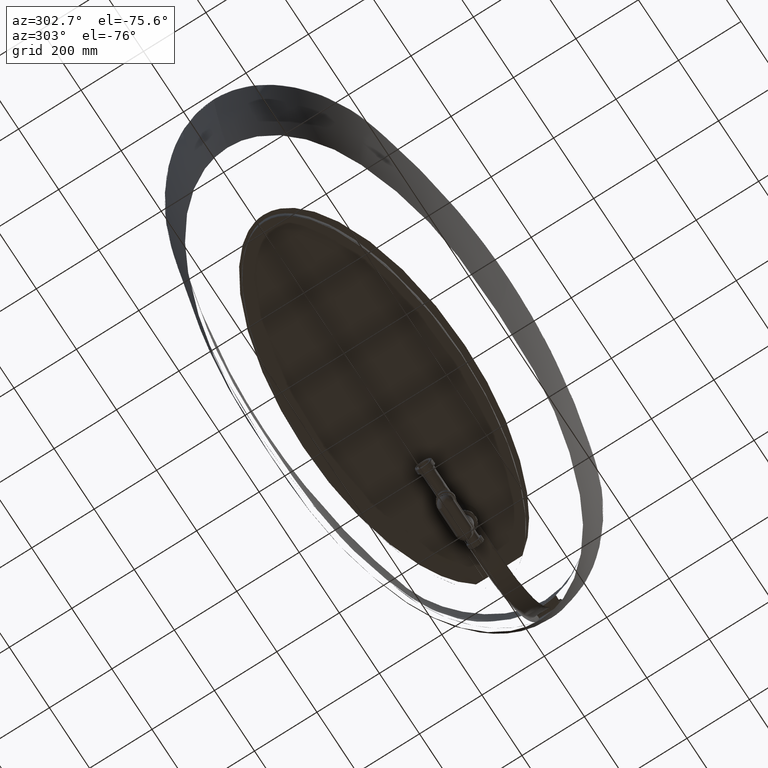
[diagram: clean part render]
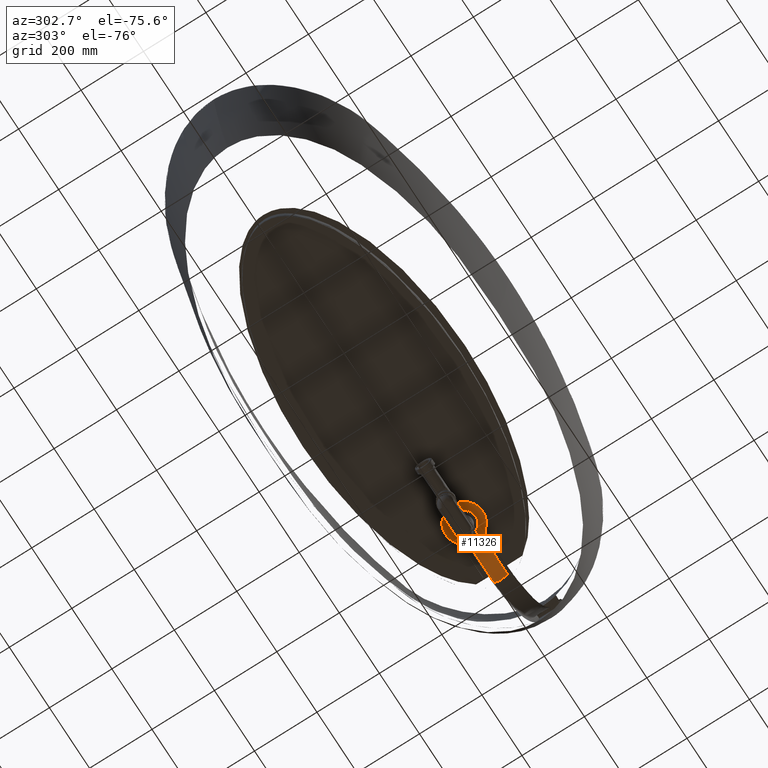
[diagram: same view with one face highlighted and labeled with its STEP entity id]
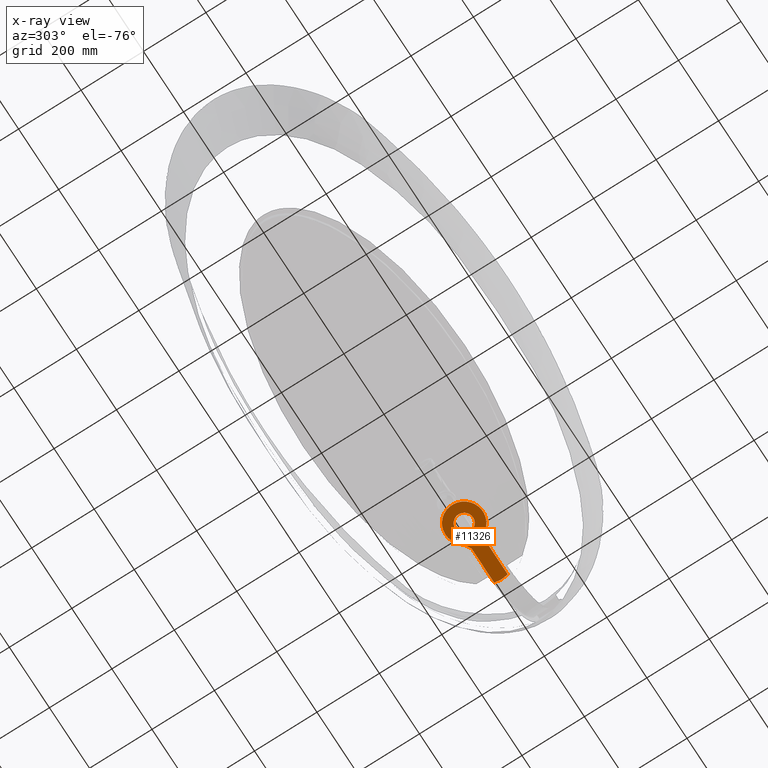
[diagram: x-ray of the same camera — body ghosted, the highlighted face saturated]
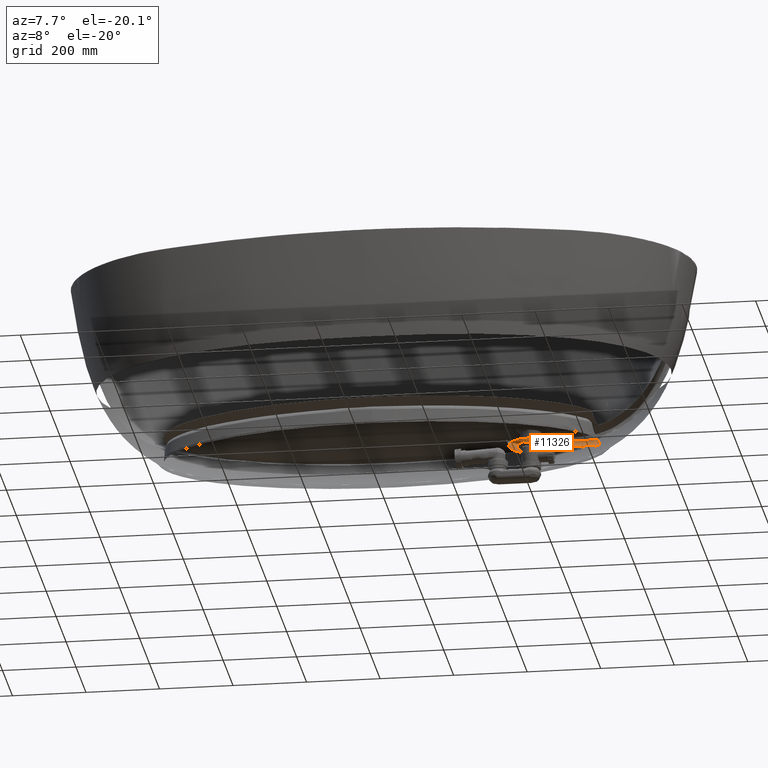
[diagram: same view with one face highlighted and labeled with its STEP entity id]
A machine part, auxiliary view. The second image highlights one B-rep face of the part: STEP entity #11326.
The next image is the same camera in x-ray: the body ghosted, the highlighted face saturated — about 0% of this face is hidden behind the body in this view.
A second angle (auxiliary view) of the same face is appended — the face is thin or edge-on in the first view.
In plain terms, the highlighted planar face has unit normal (0, 0, 1).
Its self-contained STEP definition (entity closure, byte-faithful):
#6829=(
BOUNDED_CURVE()
B_SPLINE_CURVE(2,(#441106,#441107,#441108,#441109,#441110,#441111,#441112,
#441113,#441114),.UNSPECIFIED.,.F.,.F.)
B_SPLINE_CURVE_WITH_KNOTS((3,2,2,2,3),(-9.86416203930085,-8.64812152947564,
-7.43208101965043,-6.21604050982521,-5.),.UNSPECIFIED.)
CURVE()
GEOMETRIC_REPRESENTATION_ITEM()
RATIONAL_B_SPLINE_CURVE((1.,0.820780542384642,1.,0.820780542384642,1.,0.820780542384642,
1.,0.820780542384642,1.))
REPRESENTATION_ITEM('')
);
#6834=(
BOUNDED_CURVE()
B_SPLINE_CURVE(3,(#441298,#441299,#441300,#441301),.UNSPECIFIED.,.F.,.F.)
B_SPLINE_CURVE_WITH_KNOTS((4,4),(-1.,-0.5),.UNSPECIFIED.)
CURVE()
GEOMETRIC_REPRESENTATION_ITEM()
RATIONAL_B_SPLINE_CURVE((1.,0.333333333333333,0.333333333333333,1.))
REPRESENTATION_ITEM('')
);
#6868=(
BOUNDED_CURVE()
B_SPLINE_CURVE(3,(#443728,#443729,#443730,#443731),.UNSPECIFIED.,.F.,.F.)
B_SPLINE_CURVE_WITH_KNOTS((4,4),(-0.5,0.),.UNSPECIFIED.)
CURVE()
GEOMETRIC_REPRESENTATION_ITEM()
RATIONAL_B_SPLINE_CURVE((1.,0.333333333333333,0.333333333333333,1.))
REPRESENTATION_ITEM('')
);
#7699=PLANE('',#34761);
#9117=FACE_BOUND('',#14189,.T.);
#11326=ADVANCED_FACE('',(#12700,#9117),#7699,.T.);
#12700=FACE_OUTER_BOUND('',#14188,.T.);
#14188=EDGE_LOOP('',(#20958,#20959,#20960,#20961,#20962,#20963,#20964,#20965,
#20966));
#14189=EDGE_LOOP('',(#20967,#20968));
#20958=ORIENTED_EDGE('',*,*,#26063,.F.);
#20959=ORIENTED_EDGE('',*,*,#26097,.F.);
#20960=ORIENTED_EDGE('',*,*,#26096,.T.);
#20961=ORIENTED_EDGE('',*,*,#26095,.F.);
#20962=ORIENTED_EDGE('',*,*,#26066,.F.);
#20963=ORIENTED_EDGE('',*,*,#26109,.F.);
#20964=ORIENTED_EDGE('',*,*,#26098,.F.);
#20965=ORIENTED_EDGE('',*,*,#26094,.F.);
#20966=ORIENTED_EDGE('',*,*,#26106,.F.);
#20967=ORIENTED_EDGE('',*,*,#26202,.F.);
#20968=ORIENTED_EDGE('',*,*,#26120,.F.);
#26063=EDGE_CURVE('',#33891,#33892,#29592,.T.);
#26066=EDGE_CURVE('',#33893,#33894,#29594,.T.);
#26094=EDGE_CURVE('',#33856,#33855,#29621,.T.);
#26095=EDGE_CURVE('',#33894,#33912,#29622,.T.);
#26096=EDGE_CURVE('',#33913,#33912,#6829,.T.);
#26097=EDGE_CURVE('',#33913,#33891,#29623,.T.);
#26098=EDGE_CURVE('',#33855,#33870,#29624,.T.);
#26106=EDGE_CURVE('',#33892,#33856,#29632,.T.);
#26109=EDGE_CURVE('',#33870,#33893,#29635,.T.);
#26120=EDGE_CURVE('',#33911,#33950,#6834,.T.);
#26202=EDGE_CURVE('',#33950,#33911,#6868,.T.);
#29592=B_SPLINE_CURVE_WITH_KNOTS('',3,(#440815,#440816,#440817,#440818,
#440819,#440820),.UNSPECIFIED.,.F.,.F.,(4,2,4),(0.,0.50000010091084,1.),
 .UNSPECIFIED.);
#29594=B_SPLINE_CURVE_WITH_KNOTS('',3,(#440830,#440831,#440832,#440833,
#440834,#440835),.UNSPECIFIED.,.F.,.F.,(4,2,4),(0.,0.5,1.),
 .UNSPECIFIED.);
#29621=B_SPLINE_CURVE_WITH_KNOTS('',3,(#441098,#441099,#441100,#441101),
 .UNSPECIFIED.,.F.,.F.,(4,4),(1.,2.00000000000481),.UNSPECIFIED.);
#29622=B_SPLINE_CURVE_WITH_KNOTS('',3,(#441102,#441103,#441104,#441105),
 .UNSPECIFIED.,.F.,.F.,(4,4),(4.99985972544549,5.),.UNSPECIFIED.);
#29623=B_SPLINE_CURVE_WITH_KNOTS('',3,(#441115,#441116,#441117,#441118),
 .UNSPECIFIED.,.F.,.F.,(4,4),(9.86416203930085,9.86430228728501),
 .UNSPECIFIED.);
#29624=B_SPLINE_CURVE_WITH_KNOTS('',3,(#441119,#441120,#441121,#441122),
 .UNSPECIFIED.,.F.,.F.,(4,4),(2.00000000000481,3.),.UNSPECIFIED.);
#29632=B_SPLINE_CURVE_WITH_KNOTS('',1,(#441210,#441211),.UNSPECIFIED.,.F.,
 .F.,(2,2),(-6.,-5.),.UNSPECIFIED.);
#29635=B_SPLINE_CURVE_WITH_KNOTS('',1,(#441226,#441227),.UNSPECIFIED.,.F.,
 .F.,(2,2),(-1.,0.),.UNSPECIFIED.);
#33855=VERTEX_POINT('',#439586);
#33856=VERTEX_POINT('',#439587);
#33870=VERTEX_POINT('',#439601);
#33891=VERTEX_POINT('',#439622);
#33892=VERTEX_POINT('',#439623);
#33893=VERTEX_POINT('',#439624);
#33894=VERTEX_POINT('',#439625);
#33911=VERTEX_POINT('',#439642);
#33912=VERTEX_POINT('',#439643);
#33913=VERTEX_POINT('',#439644);
#33950=VERTEX_POINT('',#439681);
#34761=AXIS2_PLACEMENT_3D('',#232204,#35022,$);
#35022=DIRECTION('',(0.,0.,1.));
#232204=CARTESIAN_POINT('',(187.797578071353,-60.72,-43.545163362143));
#439586=CARTESIAN_POINT('',(186.319660110689,4.65558437415484E-05,-43.545163362143));
#439587=CARTESIAN_POINT('',(183.602044276566,21.6733765196507,-43.545163362143));
#439601=CARTESIAN_POINT('',(183.602018371145,-21.6733765196512,-43.545163362143));
#439622=CARTESIAN_POINT('',(45.5236489327466,39.0844910455018,-43.545163362143));
#439623=CARTESIAN_POINT('',(70.7593026238241,21.6733785123851,-43.5451633621427));
#439624=CARTESIAN_POINT('',(70.7593038445617,-21.6733765196516,-43.545163362143));
#439625=CARTESIAN_POINT('',(45.5236469678309,-39.0844933332093,-43.545163362143));
#439642=CARTESIAN_POINT('',(-28.4999999999999,-1.51552985660953E-11,-43.545163362143));
#439643=CARTESIAN_POINT('',(45.5208071420167,-39.0878001061626,-43.545163362143));
#439644=CARTESIAN_POINT('',(45.5208071420166,39.0878001061627,-43.545163362143));
#439681=CARTESIAN_POINT('',(28.5,3.49024337756996E-15,-43.545163362143));
#440815=CARTESIAN_POINT('',(45.5236489327466,39.0844910455018,-43.545163362143));
#440816=CARTESIAN_POINT('',(48.9004902029902,35.1529101417208,-43.5451633621431));
#440817=CARTESIAN_POINT('',(53.0358993696763,32.1271972369296,-43.5451633621432));
#440818=CARTESIAN_POINT('',(61.7735130015036,26.6867699211473,-43.5451633621434));
#440819=CARTESIAN_POINT('',(66.3547927200569,24.2601765556654,-43.5451633621436));
#440820=CARTESIAN_POINT('',(70.7593026238241,21.6733785123851,-43.5451633621427));
#440830=CARTESIAN_POINT('',(70.7593038445617,-21.6733765196516,-43.545163362143));
#440831=CARTESIAN_POINT('',(66.353442202436,-24.2609720670331,-43.545163362143));
#440832=CARTESIAN_POINT('',(61.7755276383475,-26.6857489094312,-43.5451633621429));
#440833=CARTESIAN_POINT('',(53.0405065323307,-32.1240978542355,-43.545163362143));
#440834=CARTESIAN_POINT('',(48.8975140880831,-35.1563746511281,-43.545163362143));
#440835=CARTESIAN_POINT('',(45.5236469678309,-39.0844933332093,-43.545163362143));
#441098=CARTESIAN_POINT('',(183.602044276566,21.6733765196507,-43.545163362143));
#441099=CARTESIAN_POINT('',(185.379747185751,14.5845941145746,-43.545163362143));
#441100=CARTESIAN_POINT('',(186.319570557824,7.30931503572457,-43.545163362143));
#441101=CARTESIAN_POINT('',(186.319660110689,4.65558437415484E-05,-43.545163362143));
#441102=CARTESIAN_POINT('',(45.5236469678309,-39.0844933332093,-43.545163362143));
#441103=CARTESIAN_POINT('',(45.5227002986698,-39.0855955203245,-43.545163362143));
#441104=CARTESIAN_POINT('',(45.5217536900611,-39.0866977779713,-43.545163362143));
#441105=CARTESIAN_POINT('',(45.5208071420167,-39.0878001061626,-43.545163362143));
#441106=CARTESIAN_POINT('',(45.5208071420165,39.0878001061627,-43.545163362143));
#441107=CARTESIAN_POINT('',(18.3166322982653,70.7691941256961,-43.545163362143));
#441108=CARTESIAN_POINT('',(-20.8416838508675,56.2638801920068,-43.545163362143));
#441109=CARTESIAN_POINT('',(-60.0000000000002,41.7585662583176,-43.545163362143));
#441110=CARTESIAN_POINT('',(-60.0000000000002,-1.4210854715202E-13,-43.545163362143));
#441111=CARTESIAN_POINT('',(-60.0000000000001,-41.7585662583179,-43.545163362143));
#441112=CARTESIAN_POINT('',(-20.8416838508673,-56.263880192007,-43.545163362143));
#441113=CARTESIAN_POINT('',(18.3166322982655,-70.7691941256961,-43.545163362143));
#441114=CARTESIAN_POINT('',(45.5208071420167,-39.0878001061626,-43.545163362143));
#441115=CARTESIAN_POINT('',(45.5208071420166,39.0878001061627,-43.545163362143));
#441116=CARTESIAN_POINT('',(45.5217543458867,39.0866970146396,-43.545163362143));
#441117=CARTESIAN_POINT('',(45.5227016094672,39.0855939944237,-43.545163362143));
#441118=CARTESIAN_POINT('',(45.5236489327466,39.0844910455018,-43.545163362143));
#441119=CARTESIAN_POINT('',(186.319660110689,4.65558437415484E-05,-43.545163362143));
#441120=CARTESIAN_POINT('',(186.319547693715,-7.30924779194179,-43.545163362143));
#441121=CARTESIAN_POINT('',(185.379696440022,-14.5845548336549,-43.545163362143));
#441122=CARTESIAN_POINT('',(183.602018371145,-21.6733765196512,-43.545163362143));
#441210=CARTESIAN_POINT('',(70.7593026238241,21.6733785123851,-43.5451633621427));
#441211=CARTESIAN_POINT('',(183.602044276566,21.6733765196507,-43.545163362143));
#441226=CARTESIAN_POINT('',(183.602018371145,-21.6733765196512,-43.545163362143));
#441227=CARTESIAN_POINT('',(70.7593038445617,-21.6733765196516,-43.545163362143));
#441298=CARTESIAN_POINT('',(-28.5,0.,-43.545163362143));
#441299=CARTESIAN_POINT('',(-28.5,-57.,-43.545163362143));
#441300=CARTESIAN_POINT('',(28.5,-57.,-43.545163362143));
#441301=CARTESIAN_POINT('',(28.5,3.49024337756996E-15,-43.545163362143));
#443728=CARTESIAN_POINT('',(28.5,3.49024337756996E-15,-43.545163362143));
#443729=CARTESIAN_POINT('',(28.5,57.,-43.545163362143));
#443730=CARTESIAN_POINT('',(-28.5,57.,-43.545163362143));
#443731=CARTESIAN_POINT('',(-28.5,0.,-43.545163362143));